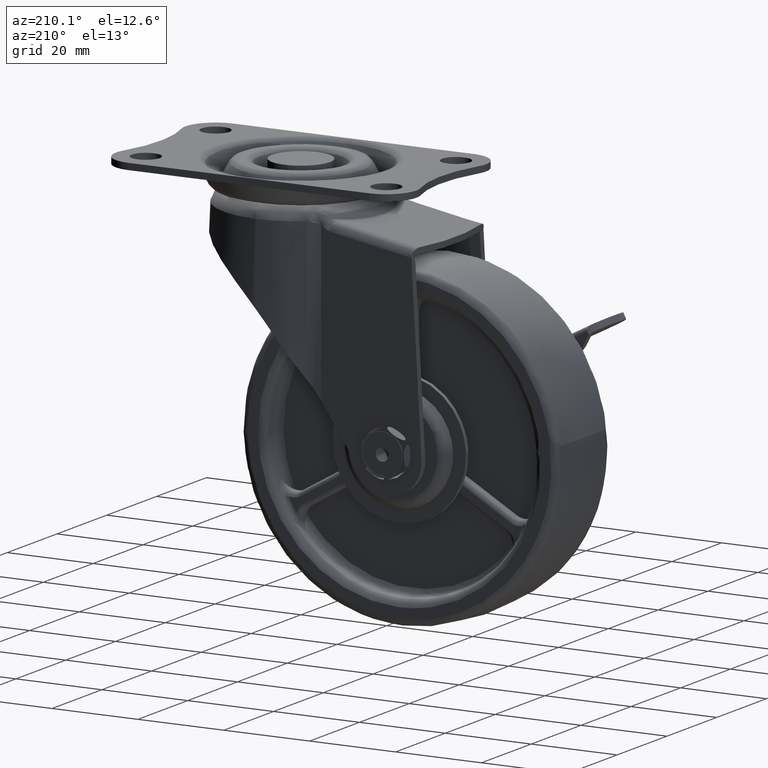
[diagram: clean part render]
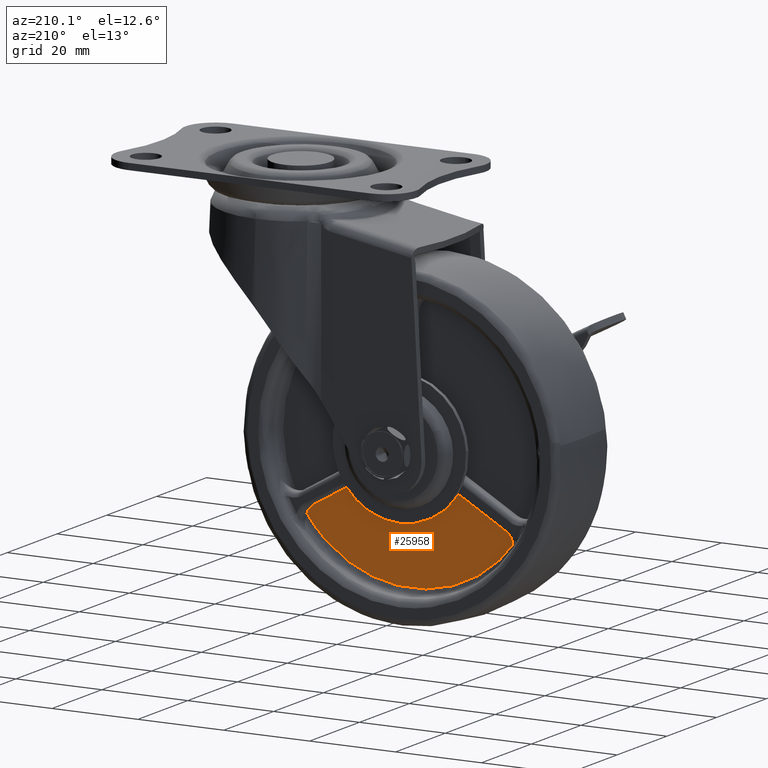
[diagram: same view with one face highlighted and labeled with its STEP entity id]
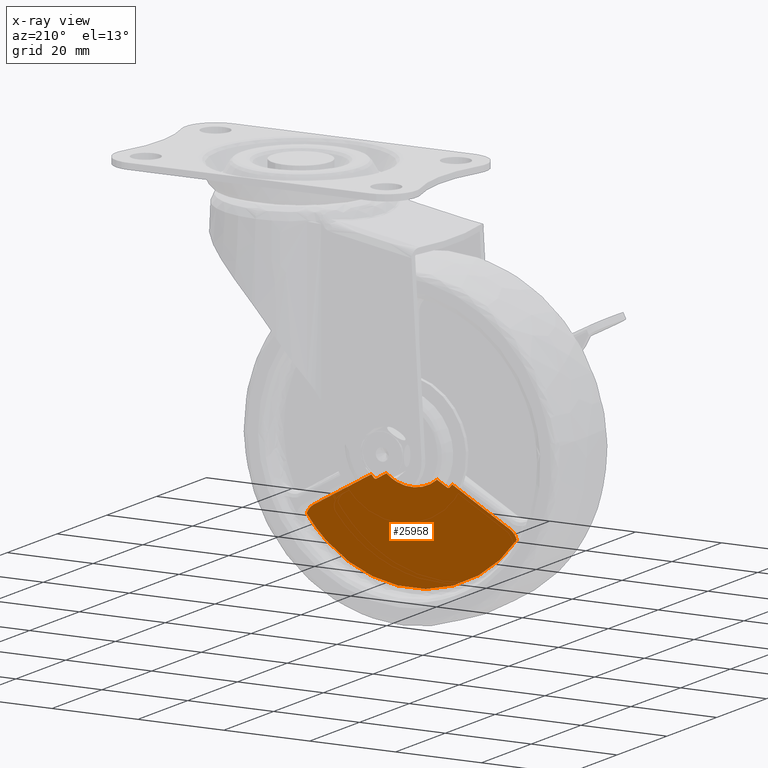
[diagram: x-ray of the same camera — body ghosted, the highlighted face saturated]
A machine part, auxiliary view. The second image highlights one B-rep face of the part: STEP entity #25958.
The next image is the same camera in x-ray: the body ghosted, the highlighted face saturated — about 0% of this face is hidden behind the body in this view.
In plain terms, the highlighted face is a freeform B-spline surface patch.
Its self-contained STEP definition (entity closure, byte-faithful):
#22688=CARTESIAN_POINT('',(-34.892241524485847,5.500000000000000,-59.865984143295087));
#22689=VERTEX_POINT('',#22688);
#22699=CARTESIAN_POINT('',(-37.221111389970851,5.500000000000000,-61.210557893812002));
#22700=VERTEX_POINT('',#22699);
#22701=CARTESIAN_POINT('',(-34.892241524485847,5.500000000000000,-59.865984143295087));
#22702=CARTESIAN_POINT('',(-37.221111389970851,5.500000000000000,-61.210557893812002));
#22703=QUASI_UNIFORM_CURVE('',1,(#22701,#22702),.UNSPECIFIED.,.F.,.U.);
#22704=EDGE_CURVE('',#22689,#22700,#22703,.T.);
#22728=CARTESIAN_POINT('',(-37.839420596375753,5.500000000000000,-61.115699513582001));
#22729=VERTEX_POINT('',#22728);
#22737=CARTESIAN_POINT('',(-37.221111389970851,5.500000000000000,-61.210557893812002));
#22738=CARTESIAN_POINT('',(-37.568293949061598,5.500000000000001,-61.411003853678267));
#22739=CARTESIAN_POINT('',(-37.839420596375760,5.500000000000000,-61.115699513582022));
#22747=(BOUNDED_CURVE()B_SPLINE_CURVE(2,(#22737,#22738,#22739),.UNSPECIFIED.,.F.,.U.)CURVE()GEOMETRIC_REPRESENTATION_ITEM()QUASI_UNIFORM_CURVE()RATIONAL_B_SPLINE_CURVE((1.0,0.780189472484132,1.0))REPRESENTATION_ITEM(''));
#22748=EDGE_CURVE('',#22700,#22729,#22747,.T.);
#22770=CARTESIAN_POINT('',(-38.406203727376948,5.500000000000000,-60.451393952000700));
#22771=VERTEX_POINT('',#22770);
#22772=CARTESIAN_POINT('',(-37.839420596375781,5.500000000000000,-61.115699513582037));
#22773=CARTESIAN_POINT('',(-38.134905523860510,5.500000000000000,-60.793864746016169));
#22774=CARTESIAN_POINT('',(-38.406203727376941,5.500000000000000,-60.451393952000693));
#22782=(BOUNDED_CURVE()B_SPLINE_CURVE(2,(#22772,#22773,#22774),.UNSPECIFIED.,.F.,.U.)CURVE()GEOMETRIC_REPRESENTATION_ITEM()QUASI_UNIFORM_CURVE()RATIONAL_B_SPLINE_CURVE((1.0,0.999337849357486,1.0))REPRESENTATION_ITEM(''));
#22783=EDGE_CURVE('',#22729,#22771,#22782,.T.);
#22989=CARTESIAN_POINT('',(-23.107761205309650,5.500000000000000,-59.865986485945207));
#22990=VERTEX_POINT('',#22989);
#23004=CARTESIAN_POINT('',(-20.778890477751649,5.500000000000000,-61.210560080094702));
#23005=VERTEX_POINT('',#23004);
#23011=CARTESIAN_POINT('',(-20.778890477751649,5.500000000000000,-61.210560080094702));
#23012=CARTESIAN_POINT('',(-23.107761205309650,5.500000000000000,-59.865986485945207));
#23013=QUASI_UNIFORM_CURVE('',1,(#23011,#23012),.UNSPECIFIED.,.F.,.U.);
#23014=EDGE_CURVE('',#23005,#22990,#23013,.T.);
#23035=CARTESIAN_POINT('',(-20.160581447729601,5.500000000000000,-61.115701739969701));
#23036=VERTEX_POINT('',#23035);
#23042=CARTESIAN_POINT('',(-20.160581447729570,5.500000000000000,-61.115701739969730));
#23043=CARTESIAN_POINT('',(-20.431708040949516,5.499999999999999,-61.411005871848211));
#23044=CARTESIAN_POINT('',(-20.778890477751670,5.500000000000000,-61.210560080094737));
#23052=(BOUNDED_CURVE()B_SPLINE_CURVE(2,(#23042,#23043,#23044),.UNSPECIFIED.,.F.,.U.)CURVE()GEOMETRIC_REPRESENTATION_ITEM()QUASI_UNIFORM_CURVE()RATIONAL_B_SPLINE_CURVE((1.0,0.780189617145632,1.0))REPRESENTATION_ITEM(''));
#23053=EDGE_CURVE('',#23036,#23005,#23052,.T.);
#23170=CARTESIAN_POINT('',(-19.593798813912802,5.500000000000000,-60.451397159973297));
#23171=VERTEX_POINT('',#23170);
#23177=CARTESIAN_POINT('',(-19.593798813912791,5.500000000000000,-60.451397159973297));
#23178=CARTESIAN_POINT('',(-19.865096801536342,5.500000000000000,-60.793867441492402));
#23179=CARTESIAN_POINT('',(-20.160581447729570,5.500000000000000,-61.115701739969722));
#23187=(BOUNDED_CURVE()B_SPLINE_CURVE(2,(#23177,#23178,#23179),.UNSPECIFIED.,.F.,.U.)CURVE()GEOMETRIC_REPRESENTATION_ITEM()QUASI_UNIFORM_CURVE()RATIONAL_B_SPLINE_CURVE((1.0,0.999337850979858,1.0))REPRESENTATION_ITEM(''));
#23188=EDGE_CURVE('',#23171,#23036,#23187,.T.);
#24001=CARTESIAN_POINT('',(-53.448896085870103,5.500000000000000,-70.212243970045307));
#24002=VERTEX_POINT('',#24001);
#24036=CARTESIAN_POINT('',(-51.855483999999997,5.500000000000000,-68.216334599999996));
#24037=VERTEX_POINT('',#24036);
#24043=CARTESIAN_POINT('',(-53.448896085870068,5.500000000000000,-70.212243970045321));
#24044=CARTESIAN_POINT('',(-53.043249772740040,5.500000000000000,-68.902091091497397));
#24045=CARTESIAN_POINT('',(-51.855483999999997,5.500000000000000,-68.216334599999996));
#24053=(BOUNDED_CURVE()B_SPLINE_CURVE(2,(#24043,#24044,#24045),.UNSPECIFIED.,.F.,.U.)CURVE()GEOMETRIC_REPRESENTATION_ITEM()QUASI_UNIFORM_CURVE()RATIONAL_B_SPLINE_CURVE((1.0,0.931066788665372,1.0))REPRESENTATION_ITEM(''));
#24054=EDGE_CURVE('',#24002,#24037,#24053,.T.);
#24284=CARTESIAN_POINT('',(-6.144523398630491,5.500000000000000,-68.216342656552499));
#24285=VERTEX_POINT('',#24284);
#24292=CARTESIAN_POINT('',(-4.551111499190020,5.500000000000000,-70.212254744132196));
#24293=VERTEX_POINT('',#24292);
#24323=CARTESIAN_POINT('',(-6.144523398630517,5.500000000000000,-68.216342656552527));
#24324=CARTESIAN_POINT('',(-4.956757047262873,5.500000000000001,-68.902100432060649));
#24325=CARTESIAN_POINT('',(-4.551111499190039,5.500000000000000,-70.212254744132196));
#24333=(BOUNDED_CURVE()B_SPLINE_CURVE(2,(#24323,#24324,#24325),.UNSPECIFIED.,.F.,.U.)CURVE()GEOMETRIC_REPRESENTATION_ITEM()QUASI_UNIFORM_CURVE()RATIONAL_B_SPLINE_CURVE((1.0,0.931066685366567,1.0))REPRESENTATION_ITEM(''));
#24334=EDGE_CURVE('',#24285,#24293,#24333,.T.);
#24957=CARTESIAN_POINT('',(-53.448896085870068,5.500000000000000,-70.212243970045265));
#24958=CARTESIAN_POINT('',(-44.516604234824797,5.500000000000000,-82.899992581088298));
#24959=CARTESIAN_POINT('',(-29.000006588134902,5.500000000000000,-82.899995999999263));
#24960=CARTESIAN_POINT('',(-13.483408941445015,5.500000000000000,-82.899999418910255));
#24961=CARTESIAN_POINT('',(-4.551111499189943,5.500000000000000,-70.212254744132267));
#24969=(BOUNDED_CURVE()B_SPLINE_CURVE(2,(#24957,#24958,#24959,#24960,#24961),.UNSPECIFIED.,.F.,.U.)B_SPLINE_CURVE_WITH_KNOTS((3,2,3),(0.0,0.500000000000000,1.0),.UNSPECIFIED.)CURVE()GEOMETRIC_REPRESENTATION_ITEM()RATIONAL_B_SPLINE_CURVE((1.0,0.887598064270728,1.0,0.887598064270728,1.0))REPRESENTATION_ITEM(''));
#24970=EDGE_CURVE('',#24002,#24293,#24969,.T.);
#25600=CARTESIAN_POINT('',(-51.855483999999997,5.500000000000000,-68.216334599999996));
#25601=CARTESIAN_POINT('',(-38.406203727376948,5.500000000000000,-60.451393952000700));
#25602=QUASI_UNIFORM_CURVE('',1,(#25600,#25601),.UNSPECIFIED.,.F.,.U.);
#25603=EDGE_CURVE('',#24037,#22771,#25602,.T.);
#25690=CARTESIAN_POINT('',(-19.593798813912802,5.500000000000000,-60.451397159973297));
#25691=CARTESIAN_POINT('',(-6.144523398630491,5.500000000000000,-68.216342656552499));
#25692=QUASI_UNIFORM_CURVE('',1,(#25690,#25691),.UNSPECIFIED.,.F.,.U.);
#25693=EDGE_CURVE('',#23171,#24285,#25692,.T.);
#25927=CARTESIAN_POINT('',(-55.891338954149127,5.500000000000000,-58.715437190099017));
#25928=CARTESIAN_POINT('',(-55.891338954149127,5.500000000000000,-84.050541923494777));
#25929=CARTESIAN_POINT('',(-2.108666007829415,5.500000000000000,-58.715437190099017));
#25930=CARTESIAN_POINT('',(-2.108666007829415,5.500000000000000,-84.050541923494777));
#25931=B_SPLINE_SURFACE_WITH_KNOTS('',1,1,((#25927,#25929),(#25928,#25930)),.UNSPECIFIED.,.F.,.F.,.U.,(2,2),(2,2),(0.0,25.335104733395749),(0.0,53.782672946319721),.UNSPECIFIED.);
#25932=ORIENTED_EDGE('',*,*,#23014,.F.);
#25933=ORIENTED_EDGE('',*,*,#23053,.F.);
#25934=ORIENTED_EDGE('',*,*,#23188,.F.);
#25935=ORIENTED_EDGE('',*,*,#25693,.T.);
#25936=ORIENTED_EDGE('',*,*,#24334,.T.);
#25937=ORIENTED_EDGE('',*,*,#24970,.F.);
#25938=ORIENTED_EDGE('',*,*,#24054,.T.);
#25939=ORIENTED_EDGE('',*,*,#25603,.T.);
#25940=ORIENTED_EDGE('',*,*,#22783,.F.);
#25941=ORIENTED_EDGE('',*,*,#22748,.F.);
#25942=ORIENTED_EDGE('',*,*,#22704,.F.);
#25943=CARTESIAN_POINT('',(-34.892241524485840,5.500000000000000,-59.865984143295080));
#25944=CARTESIAN_POINT('',(-29.000002370103012,5.500000000000001,-64.922575487916021));
#25945=CARTESIAN_POINT('',(-23.107761205309661,5.500000000000000,-59.865986485945200));
#25953=(BOUNDED_CURVE()B_SPLINE_CURVE(2,(#25943,#25944,#25945),.UNSPECIFIED.,.F.,.U.)CURVE()GEOMETRIC_REPRESENTATION_ITEM()QUASI_UNIFORM_CURVE()RATIONAL_B_SPLINE_CURVE((1.0,0.758868364275730,1.0))REPRESENTATION_ITEM(''));
#25954=EDGE_CURVE('',#22689,#22990,#25953,.T.);
#25955=ORIENTED_EDGE('',*,*,#25954,.T.);
#25956=EDGE_LOOP('',(#25932,#25933,#25934,#25935,#25936,#25937,#25938,#25939,#25940,#25941,#25942,#25955));
#25957=FACE_OUTER_BOUND('',#25956,.T.);
#25958=ADVANCED_FACE('',(#25957),#25931,.F.);